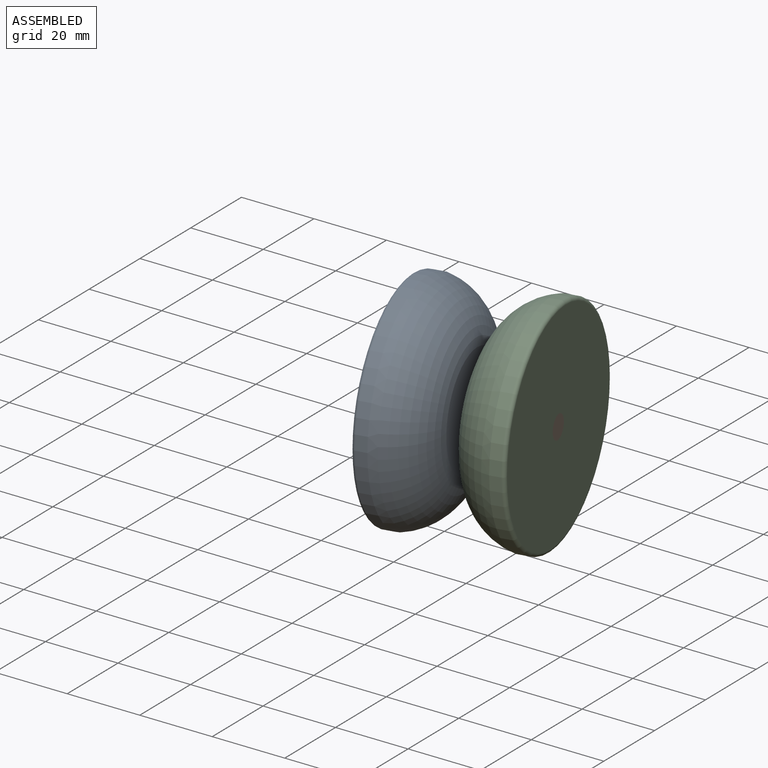
[diagram: assembled view]
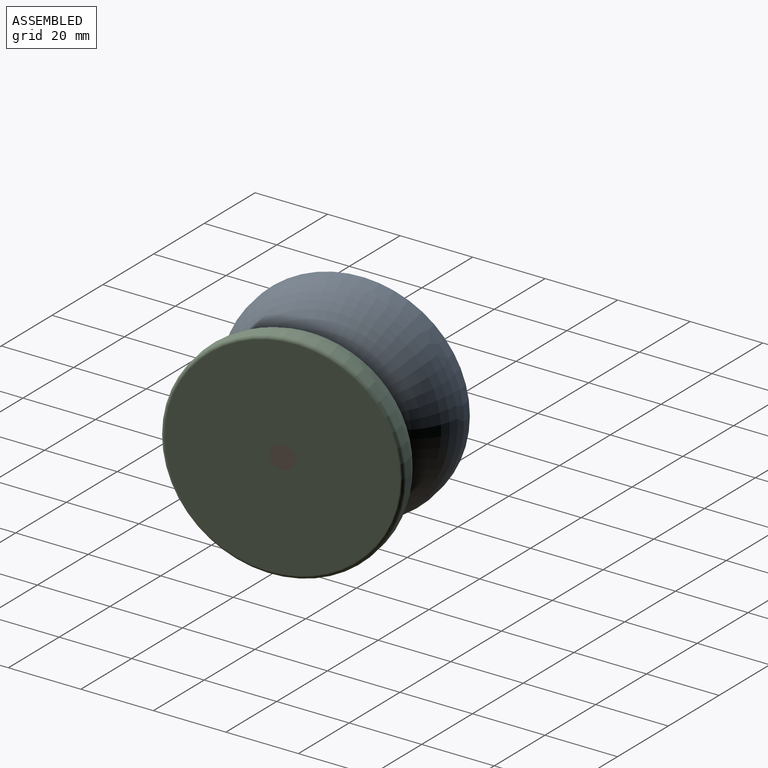
[diagram: assembled view, second angle]
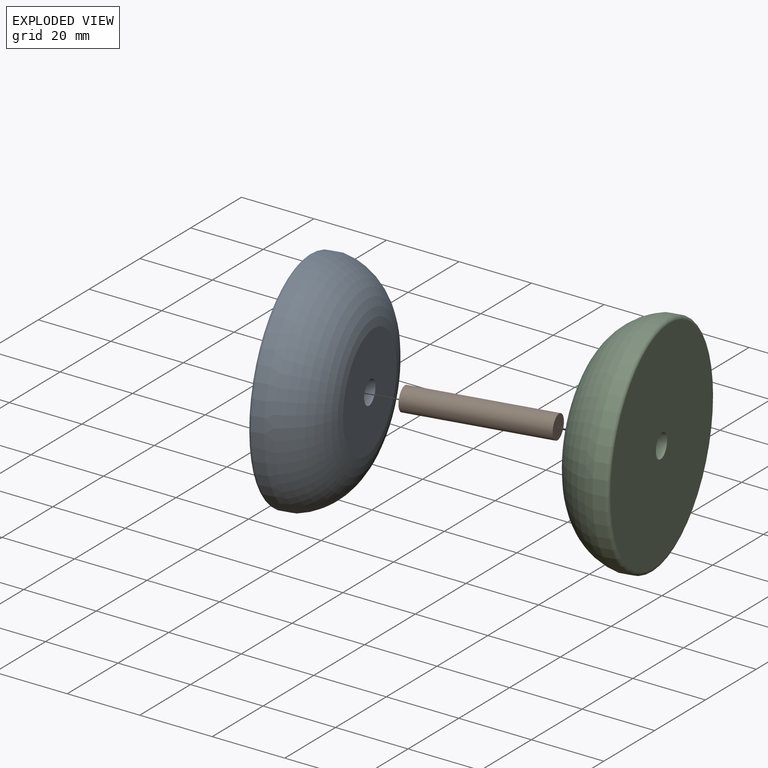
[diagram: exploded view]
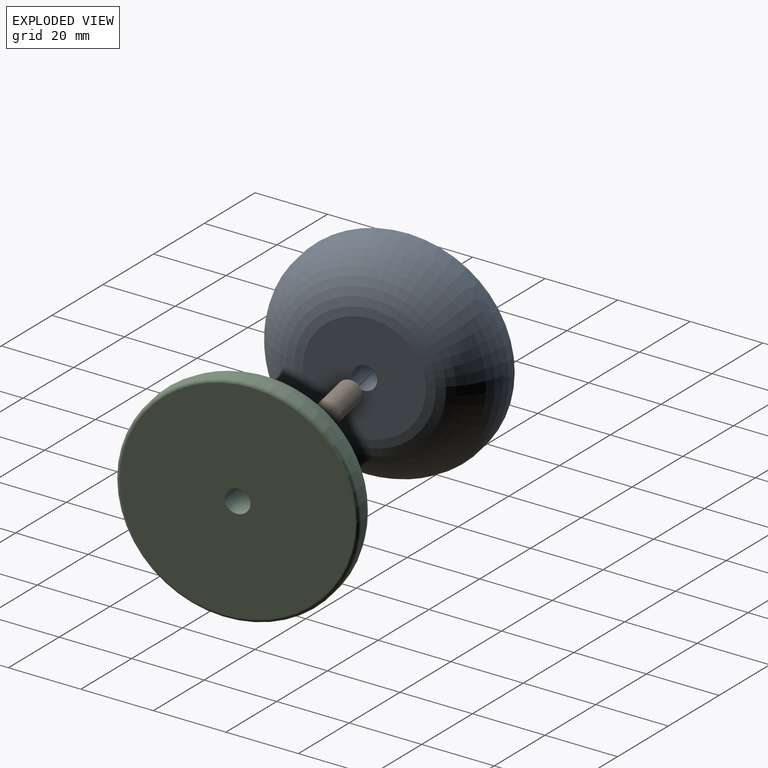
[diagram: exploded view, second angle]
ASSEMBLY  parts=3 mates=2
PART A: 6 faces, bbox 17x64.9x64.9 mm
  f0: cylinder r=3.17mm len=17mm, axis (1,0,0), area 339.1mm2, adj f1,f5
  f1: plane 58x58mm, normal (-1,0,0), area 2610.4mm2, adj f0,f2
  f2: torus R=29mm, axis (1,0,0), area 292.5mm2, adj f1,f3
  f3: cylinder r=30mm len=60mm, axis (1,0,0), area 565.5mm2, adj f2,f4
  f4: torus R=13.9mm, axis (1,0,0), area 3190.8mm2, adj f3,f5
  f5: plane 30.35x30.35mm, normal (1,0,0), area 691.8mm2, adj f0,f4
PART B: 3 faces, bbox 6.4x38x6.4 mm
  f0: cylinder r=3.17mm len=38mm, axis (0,1,0), area 758.1mm2, adj f1,f2
  f1: plane 6.35x6.35mm, normal (0,-1,0), area 31.7mm2, adj f0
  f2: plane 6.35x6.35mm, normal (0,1,0), area 31.7mm2, adj f0
PART C: same geometry as A
PLACE A rot(axis=(0,0,1),11.5deg) t=(-12.71,-39.1,0)mm
PLACE B rot(axis=(0,0,1),101.5deg) t=(-29.37,-42.49,0)mm
PLACE C rot(axis=(0.07,-0.71,-0.71),171.9deg) t=(-8.79,-38.3,0)mm
MATE revolute C.f0 <-> B.f0  axis (0.98,0.2,0) through (7.86,-34.9,0)mm
MATE revolute A.f0 <-> B.f0  axis (-0.98,-0.2,0) through (-29.37,-42.49,0)mm
